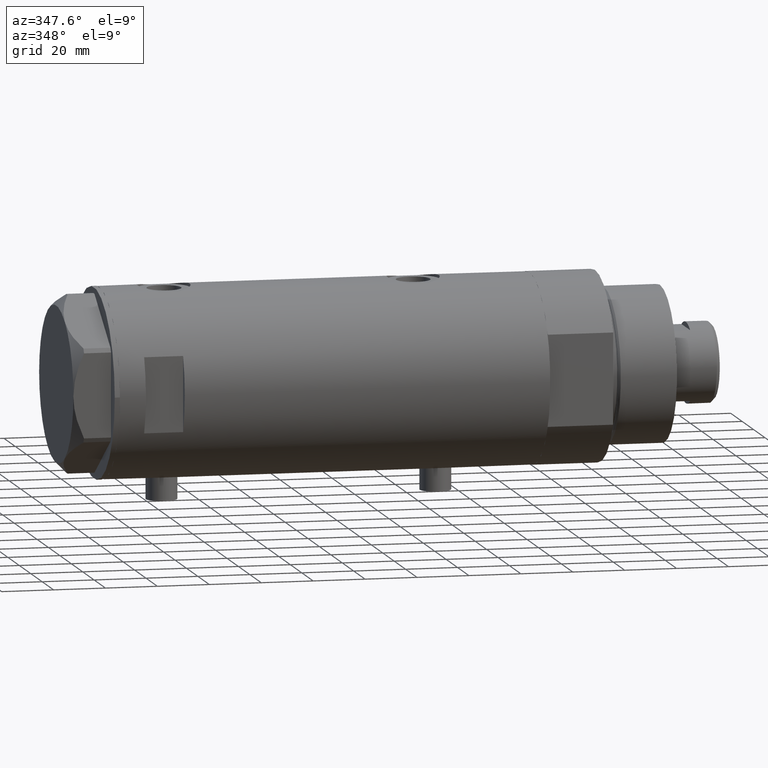
[diagram: clean part render]
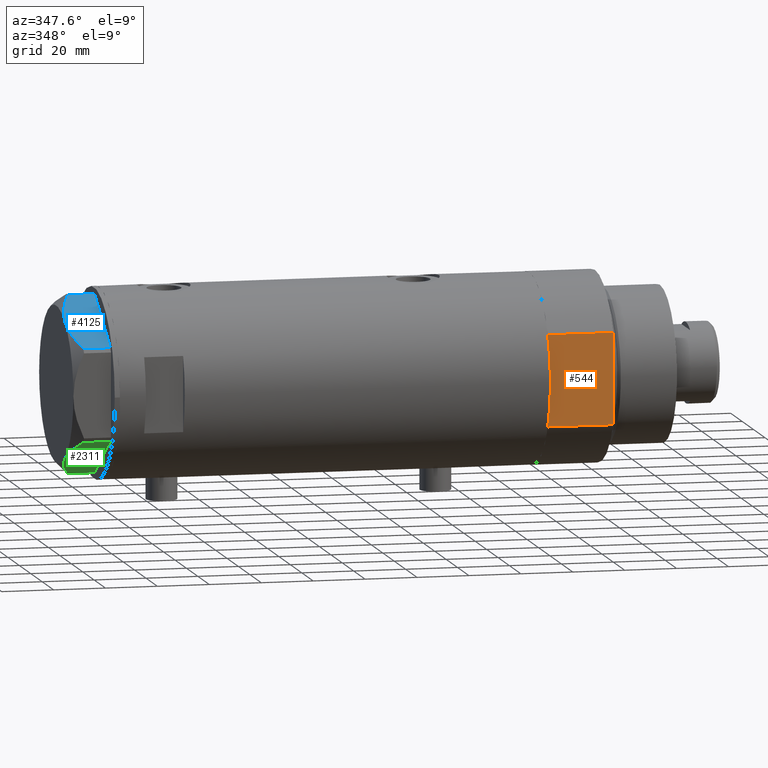
[diagram: same view with three faces highlighted in distinct colors, each labeled with its STEP entity id]
A machine part, auxiliary view with three faces highlighted in distinct colors.
Their STEP definitions:

[orange] entity #544 — the highlighted planar face has unit normal (-0, 1, 0).
#220 = FACE_OUTER_BOUND ( 'NONE', #3646, .T. ) ;
#356 = VERTEX_POINT ( 'NONE', #2266 ) ;
#381 = CARTESIAN_POINT ( 'NONE',  ( 17.55704986607943141, -32.00000000000000000, 0.000000000000000000 ) ) ;
#417 = DIRECTION ( 'NONE',  ( -0.000000000000000000, -0.000000000000000000, 1.000000000000000000 ) ) ;
#468 = CARTESIAN_POINT ( 'NONE',  ( -17.55704986607943141, -32.00000000000000000, 25.19999999999999929 ) ) ;
#494 = AXIS2_PLACEMENT_3D ( 'NONE', #2351, #605, #3740 ) ;
#544 = ADVANCED_FACE ( 'NONE', ( #220 ), #995, .F. ) ;
#605 = DIRECTION ( 'NONE',  ( -0.000000000000000000, 1.000000000000000000, 0.000000000000000000 ) ) ;
#687 = EDGE_CURVE ( 'NONE', #356, #1887, #1133, .T. ) ;
#888 = CARTESIAN_POINT ( 'NONE',  ( 17.55704986607943141, -32.00000000000000000, 0.000000000000000000 ) ) ;
#995 = PLANE ( 'NONE',  #494 ) ;
#1048 = VERTEX_POINT ( 'NONE', #2450 ) ;
#1133 = LINE ( 'NONE', #468, #4409 ) ;
#1250 = VECTOR ( 'NONE', #3315, 1000.000000000000000 ) ;
#1326 = ORIENTED_EDGE ( 'NONE', *, *, #687, .T. ) ;
#1419 = LINE ( 'NONE', #381, #3636 ) ;
#1470 = EDGE_CURVE ( 'NONE', #3972, #1887, #3697, .T. ) ;
#1477 = CARTESIAN_POINT ( 'NONE',  ( -17.55704986607943496, -32.00000000000000000, 25.19999999999999929 ) ) ;
#1648 = ORIENTED_EDGE ( 'NONE', *, *, #3153, .T. ) ;
#1689 = EDGE_CURVE ( 'NONE', #1048, #3972, #2581, .T. ) ;
#1862 = DIRECTION ( 'NONE',  ( -1.000000000000000000, -0.000000000000000000, -0.000000000000000000 ) ) ;
#1887 = VERTEX_POINT ( 'NONE', #1477 ) ;
#2175 = VECTOR ( 'NONE', #2665, 1000.000000000000000 ) ;
#2266 = CARTESIAN_POINT ( 'NONE',  ( 17.55704986607943496, -32.00000000000000000, 25.19999999999999929 ) ) ;
#2285 = ORIENTED_EDGE ( 'NONE', *, *, #1470, .F. ) ;
#2351 = CARTESIAN_POINT ( 'NONE',  ( -17.55704986607943141, -32.00000000000000000, 0.000000000000000000 ) ) ;
#2437 = CARTESIAN_POINT ( 'NONE',  ( -17.55704986607943496, -32.00000000000000000, 0.000000000000000000 ) ) ;
#2450 = CARTESIAN_POINT ( 'NONE',  ( 0.000000000000000000, -32.00000000000000000, 0.000000000000000000 ) ) ;
#2529 = DIRECTION ( 'NONE',  ( -1.000000000000000000, -0.000000000000000000, -0.000000000000000000 ) ) ;
#2552 = VERTEX_POINT ( 'NONE', #888 ) ;
#2581 = LINE ( 'NONE', #3239, #3926 ) ;
#2665 = DIRECTION ( 'NONE',  ( -0.000000000000000000, -0.000000000000000000, 1.000000000000000000 ) ) ;
#3153 = EDGE_CURVE ( 'NONE', #2552, #356, #1419, .T. ) ;
#3236 = ORIENTED_EDGE ( 'NONE', *, *, #1689, .F. ) ;
#3239 = CARTESIAN_POINT ( 'NONE',  ( -17.55704986607943141, -32.00000000000000000, 0.000000000000000000 ) ) ;
#3315 = DIRECTION ( 'NONE',  ( -1.000000000000000000, -0.000000000000000000, -0.000000000000000000 ) ) ;
#3398 = CARTESIAN_POINT ( 'NONE',  ( -17.55704986607943141, -32.00000000000000000, 0.000000000000000000 ) ) ;
#3636 = VECTOR ( 'NONE', #417, 1000.000000000000000 ) ;
#3646 = EDGE_LOOP ( 'NONE', ( #1326, #2285, #3236, #3962, #1648 ) ) ;
#3697 = LINE ( 'NONE', #4393, #2175 ) ;
#3740 = DIRECTION ( 'NONE',  ( 0.000000000000000000, -0.000000000000000000, 1.000000000000000000 ) ) ;
#3926 = VECTOR ( 'NONE', #1862, 1000.000000000000000 ) ;
#3962 = ORIENTED_EDGE ( 'NONE', *, *, #4294, .F. ) ;
#3972 = VERTEX_POINT ( 'NONE', #2437 ) ;
#4091 = LINE ( 'NONE', #3398, #1250 ) ;
#4294 = EDGE_CURVE ( 'NONE', #2552, #1048, #4091, .T. ) ;
#4393 = CARTESIAN_POINT ( 'NONE',  ( -17.55704986607943141, -32.00000000000000000, 0.000000000000000000 ) ) ;
#4409 = VECTOR ( 'NONE', #2529, 1000.000000000000000 ) ;

[blue] entity #4125 — the highlighted planar face has unit normal (-0, 0.5, -0.866).
#45 = CARTESIAN_POINT ( 'NONE',  ( -12.56968319190124639, -27.38390617690504669, 14.50000000000000711 ) ) ;
#66 = CARTESIAN_POINT ( 'NONE',  ( -14.99999999999999645, -25.98076211353316367, 14.50000000000000000 ) ) ;
#92 = CARTESIAN_POINT ( 'NONE',  ( -0.9699484522385850571, -34.08101615137752560, 14.50000000000000000 ) ) ;
#219 = CARTESIAN_POINT ( 'NONE',  ( -14.99999999999999645, -25.98076211353316367, 14.50000000000000000 ) ) ;
#317 = CARTESIAN_POINT ( 'NONE',  ( -2.073315687465953960, -33.44398678110400169, 11.01056656432686509 ) ) ;
#384 = CARTESIAN_POINT ( 'NONE',  ( -6.639151835533460222, -30.80790005194150183, 12.99122625442232604 ) ) ;
#449 = VERTEX_POINT ( 'NONE', #4001 ) ;
#496 = VERTEX_POINT ( 'NONE', #2941 ) ;
#514 = CARTESIAN_POINT ( 'NONE',  ( -24.56959650245797988, -20.45575299680293568, 12.63511531451932512 ) ) ;
#682 = EDGE_LOOP ( 'NONE', ( #2681, #2974, #3888, #3957, #4228 ) ) ;
#699 = LINE ( 'NONE', #92, #3787 ) ;
#732 = AXIS2_PLACEMENT_3D ( 'NONE', #3275, #3545, #1563 ) ;
#749 = CARTESIAN_POINT ( 'NONE',  ( -5.477433827011700451, -31.47861825688396564, 12.55468001512206300 ) ) ;
#833 = CARTESIAN_POINT ( 'NONE',  ( -18.07068105770097688, -24.20790357827401351, 14.29910535634586921 ) ) ;
#900 = CARTESIAN_POINT ( 'NONE',  ( -19.88494945387373747, -23.16043523136143278, 14.00566141361761119 ) ) ;
#950 = VECTOR ( 'NONE', #3453, 1000.000000000000000 ) ;
#954 = DIRECTION ( 'NONE',  ( 0.8660254037844387076, -0.4999999999999997780, 0.000000000000000000 ) ) ;
#1563 = DIRECTION ( 'NONE',  ( -0.8660254037844387076, 0.4999999999999997780, 0.000000000000000000 ) ) ;
#1639 = CARTESIAN_POINT ( 'NONE',  ( -29.03005154776157326, -17.88050807568868805, 10.40518423703595374 ) ) ;
#1753 = CARTESIAN_POINT ( 'NONE',  ( -7.227334865371702222, -30.46831242133162476, 13.19311392138147276 ) ) ;
#1770 = VERTEX_POINT ( 'NONE', #1920 ) ;
#1800 = LINE ( 'NONE', #3091, #950 ) ;
#1851 = PLANE ( 'NONE',  #732 ) ;
#1864 = CARTESIAN_POINT ( 'NONE',  ( -21.07077273125423744, -22.47579984295447630, 13.71922620632299150 ) ) ;
#1875 = CARTESIAN_POINT ( 'NONE',  ( -0.9699484522385841689, -34.08101615137752560, 10.40518423703605322 ) ) ;
#1920 = CARTESIAN_POINT ( 'NONE',  ( -0.9699484522385886098, -34.08101615137752560, 0.000000000000000000 ) ) ;
#1941 = CARTESIAN_POINT ( 'NONE',  ( -16.22616138060132940, -25.27283751037305137, 14.47500996539161910 ) ) ;
#2135 = CARTESIAN_POINT ( 'NONE',  ( -3.192653970405496811, -32.79773652213460622, 11.56973717813738745 ) ) ;
#2159 = FACE_OUTER_BOUND ( 'NONE', #682, .T. ) ;
#2430 = CARTESIAN_POINT ( 'NONE',  ( -4.902385341342997194, -31.81062265488187535, 12.31959434659020758 ) ) ;
#2444 = B_SPLINE_CURVE_WITH_KNOTS ( 'NONE', 3,
 ( #3261, #4290, #514, #1864, #900, #833, #3671, #1941, #3324, #219 ),
 .UNSPECIFIED., .F., .F.,
 ( 4, 2, 2, 2, 4 ),
 ( 0.001230196178133391958, 0.009592363676680756152, 0.01377344742595443955, 0.01586398930059127951, 0.01795453117522812295 ),
 .UNSPECIFIED. ) ;
#2563 = VERTEX_POINT ( 'NONE', #1639 ) ;
#2679 = EDGE_CURVE ( 'NONE', #2563, #496, #1800, .T. ) ;
#2681 = ORIENTED_EDGE ( 'NONE', *, *, #3366, .F. ) ;
#2717 = CARTESIAN_POINT ( 'NONE',  ( -0.9699484522385841689, -34.08101615137752560, 10.40518423703605322 ) ) ;
#2941 = CARTESIAN_POINT ( 'NONE',  ( -29.03005154776141339, -17.88050807568878042, 0.000000000000000000 ) ) ;
#2974 = ORIENTED_EDGE ( 'NONE', *, *, #2679, .T. ) ;
#3015 = LINE ( 'NONE', #4398, #3861 ) ;
#3064 = EDGE_CURVE ( 'NONE', #496, #1770, #3015, .T. ) ;
#3091 = CARTESIAN_POINT ( 'NONE',  ( -29.03005154776141339, -17.88050807568878042, 14.50000000000000000 ) ) ;
#3152 = B_SPLINE_CURVE_WITH_KNOTS ( 'NONE', 3,
 ( #66, #45, #4164, #1753, #384, #749, #2430, #2135, #317, #2717 ),
 .UNSPECIFIED., .F., .F.,
 ( 4, 2, 2, 2, 4 ),
 ( 0.01795453117522812295, 0.02625795893839792672, 0.02833381587919037853, 0.03040967281998283034, 0.03456138670156772702 ),
 .UNSPECIFIED. ) ;
#3211 = EDGE_CURVE ( 'NONE', #1770, #3738, #699, .T. ) ;
#3261 = CARTESIAN_POINT ( 'NONE',  ( -29.03005154776157326, -17.88050807568868805, 10.40518423703595374 ) ) ;
#3275 = CARTESIAN_POINT ( 'NONE',  ( -30.00000000000000000, -17.32050807568877460, 14.50000000000000000 ) ) ;
#3324 = CARTESIAN_POINT ( 'NONE',  ( -15.61187731150016411, -25.62749458302751648, 14.50000000000000355 ) ) ;
#3366 = EDGE_CURVE ( 'NONE', #2563, #449, #2444, .T. ) ;
#3453 = DIRECTION ( 'NONE',  ( -0.000000000000000000, 0.000000000000000000, -1.000000000000000000 ) ) ;
#3513 = DIRECTION ( 'NONE',  ( 0.000000000000000000, 0.000000000000000000, 1.000000000000000000 ) ) ;
#3545 = DIRECTION ( 'NONE',  ( 0.4999999999999998335, 0.8660254037844388186, -0.000000000000000000 ) ) ;
#3671 = CARTESIAN_POINT ( 'NONE',  ( -17.45962150578836258, -24.56069897506165489, 14.37423503257922164 ) ) ;
#3738 = VERTEX_POINT ( 'NONE', #1875 ) ;
#3787 = VECTOR ( 'NONE', #3513, 1000.000000000000000 ) ;
#3861 = VECTOR ( 'NONE', #954, 1000.000000000000227 ) ;
#3888 = ORIENTED_EDGE ( 'NONE', *, *, #3064, .T. ) ;
#3957 = ORIENTED_EDGE ( 'NONE', *, *, #3211, .T. ) ;
#4001 = CARTESIAN_POINT ( 'NONE',  ( -14.99999999999999645, -25.98076211353316367, 14.50000000000000000 ) ) ;
#4125 = ADVANCED_FACE ( 'NONE', ( #2159 ), #1851, .F. ) ;
#4164 = CARTESIAN_POINT ( 'NONE',  ( -10.17780078270465616, -28.76486012972462447, 14.10092492974135148 ) ) ;
#4228 = ORIENTED_EDGE ( 'NONE', *, *, #4397, .F. ) ;
#4290 = CARTESIAN_POINT ( 'NONE',  ( -26.82462797925472842, -19.15380996664326219, 11.61522964162834626 ) ) ;
#4397 = EDGE_CURVE ( 'NONE', #449, #3738, #3152, .T. ) ;
#4398 = CARTESIAN_POINT ( 'NONE',  ( -30.00000000000000000, -17.32050807568877460, 0.000000000000000000 ) ) ;

[green] entity #2311 — the highlighted planar face has unit normal (0, 0.5, 0.866).
#111 = CARTESIAN_POINT ( 'NONE',  ( -14.99999999999999645, 25.98076211353316367, 14.50000000000000000 ) ) ;
#118 = CARTESIAN_POINT ( 'NONE',  ( 0.000000000000000000, 34.64101615137754209, 14.50000000000000000 ) ) ;
#137 = EDGE_CURVE ( 'NONE', #3971, #2046, #1912, .T. ) ;
#186 = EDGE_CURVE ( 'NONE', #2412, #237, #3985, .T. ) ;
#217 = CARTESIAN_POINT ( 'NONE',  ( -11.92931894229901246, 27.75362064879230317, 14.29910535634587099 ) ) ;
#237 = VERTEX_POINT ( 'NONE', #727 ) ;
#273 = VECTOR ( 'NONE', #4069, 1000.000000000000000 ) ;
#304 = CARTESIAN_POINT ( 'NONE',  ( -3.175372020745250712, 32.80771426042305450, 11.61522964162834093 ) ) ;
#369 = CARTESIAN_POINT ( 'NONE',  ( -29.03005154776141339, 17.88050807568878042, 0.000000000000000000 ) ) ;
#633 = CARTESIAN_POINT ( 'NONE',  ( -24.52256617298829866, 20.48290597018235104, 12.55468001512206833 ) ) ;
#727 = CARTESIAN_POINT ( 'NONE',  ( -0.9699484522385684038, 34.08101615137753981, 0.000000000000000000 ) ) ;
#751 = VERTEX_POINT ( 'NONE', #111 ) ;
#837 = DIRECTION ( 'NONE',  ( 0.8660254037844387076, 0.4999999999999997780, 0.000000000000000000 ) ) ;
#845 = CARTESIAN_POINT ( 'NONE',  ( -29.03005154776140984, 17.88050807568878398, 10.40518423703604256 ) ) ;
#1013 = CARTESIAN_POINT ( 'NONE',  ( -13.77383861939865461, 26.68868671669327242, 14.47500996539161555 ) ) ;
#1079 = VECTOR ( 'NONE', #1623, 1000.000000000000000 ) ;
#1120 = PLANE ( 'NONE',  #1675 ) ;
#1160 = ORIENTED_EDGE ( 'NONE', *, *, #1774, .F. ) ;
#1210 = DIRECTION ( 'NONE',  ( 0.4999999999999998335, -0.8660254037844388186, 0.000000000000000000 ) ) ;
#1286 = CARTESIAN_POINT ( 'NONE',  ( -26.80734602959449475, 19.16378770493171046, 11.56973717813737856 ) ) ;
#1332 = EDGE_CURVE ( 'NONE', #237, #3971, #1673, .T. ) ;
#1335 = CARTESIAN_POINT ( 'NONE',  ( -29.03005154776140984, 17.88050807568878398, 10.40518423703604256 ) ) ;
#1364 = CARTESIAN_POINT ( 'NONE',  ( 0.000000000000000000, 34.64101615137754209, 0.000000000000000000 ) ) ;
#1594 = B_SPLINE_CURVE_WITH_KNOTS ( 'NONE', 3,
 ( #4013, #1690, #3363, #2361, #1980, #633, #1604, #1286, #2021, #1335 ),
 .UNSPECIFIED., .F., .F.,
 ( 4, 2, 2, 2, 4 ),
 ( 0.01795453117522810907, 0.02625795893839791631, 0.02833381587919037159, 0.03040967281998281993, 0.03456138670156771314 ),
 .UNSPECIFIED. ) ;
#1604 = CARTESIAN_POINT ( 'NONE',  ( -25.09761465865699392, 20.15090157218442357, 12.31959434659020225 ) ) ;
#1623 = DIRECTION ( 'NONE',  ( 0.000000000000000000, 0.000000000000000000, 1.000000000000000000 ) ) ;
#1668 = CARTESIAN_POINT ( 'NONE',  ( -10.11505054612624832, 28.80108899570488035, 14.00566141361760764 ) ) ;
#1673 = LINE ( 'NONE', #1364, #2102 ) ;
#1675 = AXIS2_PLACEMENT_3D ( 'NONE', #118, #1210, #837 ) ;
#1690 = CARTESIAN_POINT ( 'NONE',  ( -17.43031680809874473, 24.57761805016127710, 14.50000000000000533 ) ) ;
#1774 = EDGE_CURVE ( 'NONE', #2412, #751, #2998, .T. ) ;
#1855 = ORIENTED_EDGE ( 'NONE', *, *, #1332, .T. ) ;
#1912 = LINE ( 'NONE', #2929, #1079 ) ;
#1980 = CARTESIAN_POINT ( 'NONE',  ( -23.36084816446653534, 21.15362417512481841, 12.99122625442232248 ) ) ;
#2010 = DIRECTION ( 'NONE',  ( -0.8660254037844387076, -0.4999999999999998335, 0.000000000000000000 ) ) ;
#2021 = CARTESIAN_POINT ( 'NONE',  ( -27.92668431253403583, 18.51753744596231854, 11.01056656432685266 ) ) ;
#2038 = ORIENTED_EDGE ( 'NONE', *, *, #186, .T. ) ;
#2046 = VERTEX_POINT ( 'NONE', #845 ) ;
#2101 = EDGE_CURVE ( 'NONE', #751, #2046, #1594, .T. ) ;
#2102 = VECTOR ( 'NONE', #2010, 1000.000000000000114 ) ;
#2311 = ADVANCED_FACE ( 'NONE', ( #2905 ), #1120, .F. ) ;
#2361 = CARTESIAN_POINT ( 'NONE',  ( -22.77266513462828712, 21.49321180573470258, 13.19311392138146388 ) ) ;
#2391 = CARTESIAN_POINT ( 'NONE',  ( -14.38812268849982878, 26.33402964403881441, 14.50000000000000355 ) ) ;
#2412 = VERTEX_POINT ( 'NONE', #3269 ) ;
#2662 = CARTESIAN_POINT ( 'NONE',  ( -8.929227268745748347, 29.48572438411184393, 13.71922620632299328 ) ) ;
#2685 = CARTESIAN_POINT ( 'NONE',  ( -14.99999999999999645, 25.98076211353316367, 14.50000000000000000 ) ) ;
#2905 = FACE_OUTER_BOUND ( 'NONE', #3271, .T. ) ;
#2929 = CARTESIAN_POINT ( 'NONE',  ( -29.03005154776140628, 17.88050807568878753, 14.50000000000000000 ) ) ;
#2998 = B_SPLINE_CURVE_WITH_KNOTS ( 'NONE', 3,
 ( #4054, #304, #4389, #2662, #1668, #217, #3785, #1013, #2391, #2685 ),
 .UNSPECIFIED., .F., .F.,
 ( 4, 2, 2, 2, 4 ),
 ( 0.001230196178133369841, 0.009592363676680740539, 0.01377344742595442567, 0.01586398930059126564, 0.01795453117522810907 ),
 .UNSPECIFIED. ) ;
#3269 = CARTESIAN_POINT ( 'NONE',  ( -0.9699484522384067553, 34.08101615137763218, 10.40518423703594841 ) ) ;
#3271 = EDGE_LOOP ( 'NONE', ( #1855, #3885, #3880, #1160, #2038 ) ) ;
#3363 = CARTESIAN_POINT ( 'NONE',  ( -19.82219921729533141, 23.19666409734169932, 14.10092492974134792 ) ) ;
#3785 = CARTESIAN_POINT ( 'NONE',  ( -12.54037849421162676, 27.40082525200466890, 14.37423503257921809 ) ) ;
#3880 = ORIENTED_EDGE ( 'NONE', *, *, #2101, .F. ) ;
#3885 = ORIENTED_EDGE ( 'NONE', *, *, #137, .T. ) ;
#3971 = VERTEX_POINT ( 'NONE', #369 ) ;
#3985 = LINE ( 'NONE', #4381, #273 ) ;
#4013 = CARTESIAN_POINT ( 'NONE',  ( -14.99999999999999645, 25.98076211353316367, 14.50000000000000000 ) ) ;
#4054 = CARTESIAN_POINT ( 'NONE',  ( -0.9699484522384067553, 34.08101615137763218, 10.40518423703594841 ) ) ;
#4069 = DIRECTION ( 'NONE',  ( 0.000000000000000000, 0.000000000000000000, -1.000000000000000000 ) ) ;
#4381 = CARTESIAN_POINT ( 'NONE',  ( -0.9699484522385681817, 34.08101615137753981, 14.50000000000000000 ) ) ;
#4389 = CARTESIAN_POINT ( 'NONE',  ( -5.430403497542002356, 31.50577123026336679, 12.63511531451932157 ) ) ;